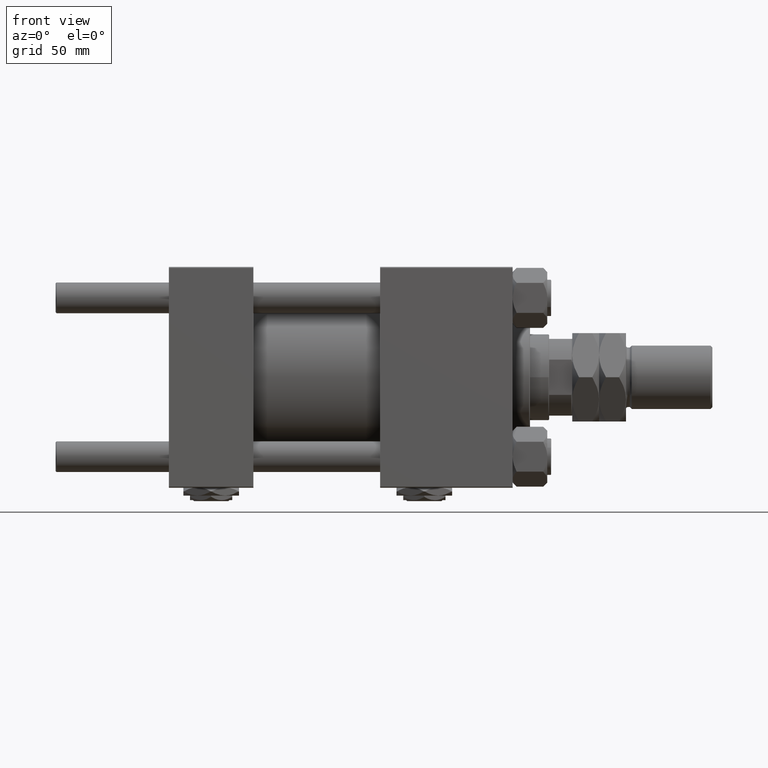
[diagram: clean part render]
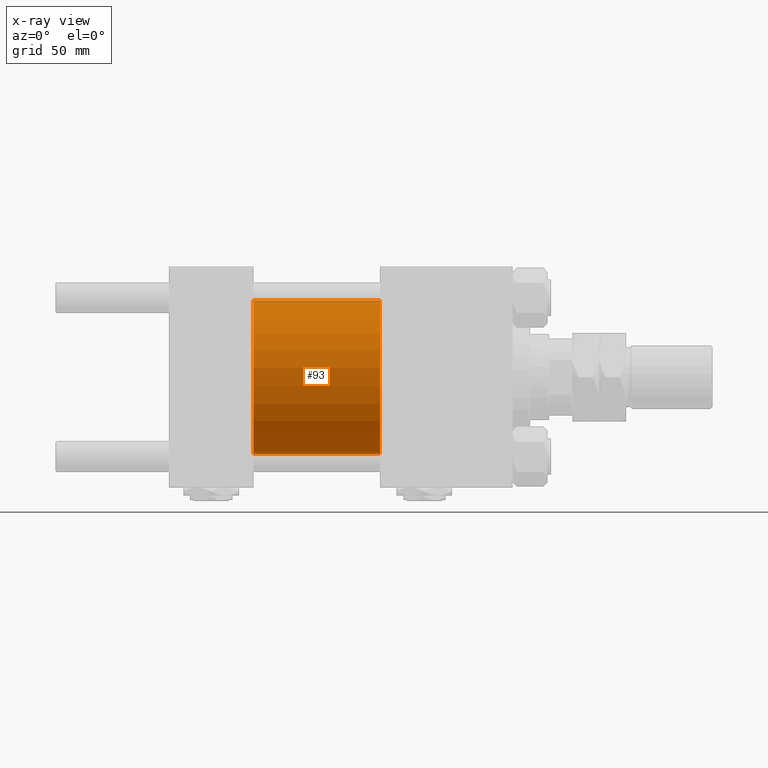
[diagram: x-ray — body ghosted, one internal face saturated and labeled with its STEP entity id]
A machine part, front view, then the same camera in x-ray: the body is ghosted and one INTERNAL B-rep face — a face not visible from any outside direction — is saturated and labeled: STEP entity #93.
In plain terms, the highlighted cylindrical surface (partial cylindrical patch) has radius 40 mm, axis along (-1, -0, -0).
Its self-contained STEP definition (entity closure, byte-faithful):
#93 = ADVANCED_FACE ( 'NONE', ( #42816 ), #1103, .F. ) ;
#535 = CARTESIAN_POINT ( 'NONE',  ( 44.00000000000000000, 0.000000000000000000, 0.000000000000000000 ) ) ;
#578 = CARTESIAN_POINT ( 'NONE',  ( 110.0000000000000000, 0.000000000000000000, 0.000000000000000000 ) ) ;
#837 = DIRECTION ( 'NONE',  ( 0.000000000000000000, 0.000000000000000000, 1.000000000000000000 ) ) ;
#1103 = CYLINDRICAL_SURFACE ( 'NONE', #9787, 40.00000000000000000 ) ;
#2181 = ORIENTED_EDGE ( 'NONE', *, *, #48727, .F. ) ;
#4393 = VERTEX_POINT ( 'NONE', #17472 ) ;
#8605 = DIRECTION ( 'NONE',  ( -1.000000000000000000, -0.000000000000000000, -0.000000000000000000 ) ) ;
#9064 = AXIS2_PLACEMENT_3D ( 'NONE', #49211, #15939, #28247 ) ;
#9173 = ORIENTED_EDGE ( 'NONE', *, *, #30099, .T. ) ;
#9787 = AXIS2_PLACEMENT_3D ( 'NONE', #578, #22384, #837 ) ;
#13285 = AXIS2_PLACEMENT_3D ( 'NONE', #535, #49898, #45817 ) ;
#15939 = DIRECTION ( 'NONE',  ( 1.000000000000000000, 0.000000000000000000, 0.000000000000000000 ) ) ;
#16323 = VERTEX_POINT ( 'NONE', #18051 ) ;
#16452 = ORIENTED_EDGE ( 'NONE', *, *, #34745, .T. ) ;
#17472 = CARTESIAN_POINT ( 'NONE',  ( 44.00000000000000000, 4.898587196589413026E-15, -40.00000000000000000 ) ) ;
#17498 = ORIENTED_EDGE ( 'NONE', *, *, #47758, .F. ) ;
#17835 = VECTOR ( 'NONE', #8605, 1000.000000000000000 ) ;
#18051 = CARTESIAN_POINT ( 'NONE',  ( 110.0000000000000000, 0.000000000000000000, 40.00000000000000000 ) ) ;
#20263 = CIRCLE ( 'NONE', #13285, 40.00000000000000000 ) ;
#20894 = LINE ( 'NONE', #37805, #17835 ) ;
#21187 = CARTESIAN_POINT ( 'NONE',  ( 44.00000000000000000, 0.000000000000000000, 40.00000000000000000 ) ) ;
#22384 = DIRECTION ( 'NONE',  ( -1.000000000000000000, -0.000000000000000000, -0.000000000000000000 ) ) ;
#24274 = DIRECTION ( 'NONE',  ( -1.000000000000000000, -0.000000000000000000, -0.000000000000000000 ) ) ;
#25053 = VERTEX_POINT ( 'NONE', #21187 ) ;
#27845 = CARTESIAN_POINT ( 'NONE',  ( 110.0000000000000000, 0.000000000000000000, 40.00000000000000000 ) ) ;
#28247 = DIRECTION ( 'NONE',  ( 0.000000000000000000, 0.000000000000000000, -1.000000000000000000 ) ) ;
#30099 = EDGE_CURVE ( 'NONE', #16323, #36543, #50035, .T. ) ;
#34745 = EDGE_CURVE ( 'NONE', #36543, #4393, #20894, .T. ) ;
#35469 = EDGE_LOOP ( 'NONE', ( #9173, #16452, #17498, #2181 ) ) ;
#36543 = VERTEX_POINT ( 'NONE', #38688 ) ;
#37805 = CARTESIAN_POINT ( 'NONE',  ( 110.0000000000000000, 4.898587196589413026E-15, -40.00000000000000000 ) ) ;
#38688 = CARTESIAN_POINT ( 'NONE',  ( 110.0000000000000000, 4.898587196589413026E-15, -40.00000000000000000 ) ) ;
#42816 = FACE_OUTER_BOUND ( 'NONE', #35469, .T. ) ;
#45817 = DIRECTION ( 'NONE',  ( 0.000000000000000000, 0.000000000000000000, -1.000000000000000000 ) ) ;
#47758 = EDGE_CURVE ( 'NONE', #25053, #4393, #20263, .T. ) ;
#48541 = LINE ( 'NONE', #27845, #53277 ) ;
#48727 = EDGE_CURVE ( 'NONE', #16323, #25053, #48541, .T. ) ;
#49211 = CARTESIAN_POINT ( 'NONE',  ( 110.0000000000000000, 0.000000000000000000, 0.000000000000000000 ) ) ;
#49898 = DIRECTION ( 'NONE',  ( 1.000000000000000000, 0.000000000000000000, 0.000000000000000000 ) ) ;
#50035 = CIRCLE ( 'NONE', #9064, 40.00000000000000000 ) ;
#53277 = VECTOR ( 'NONE', #24274, 1000.000000000000000 ) ;